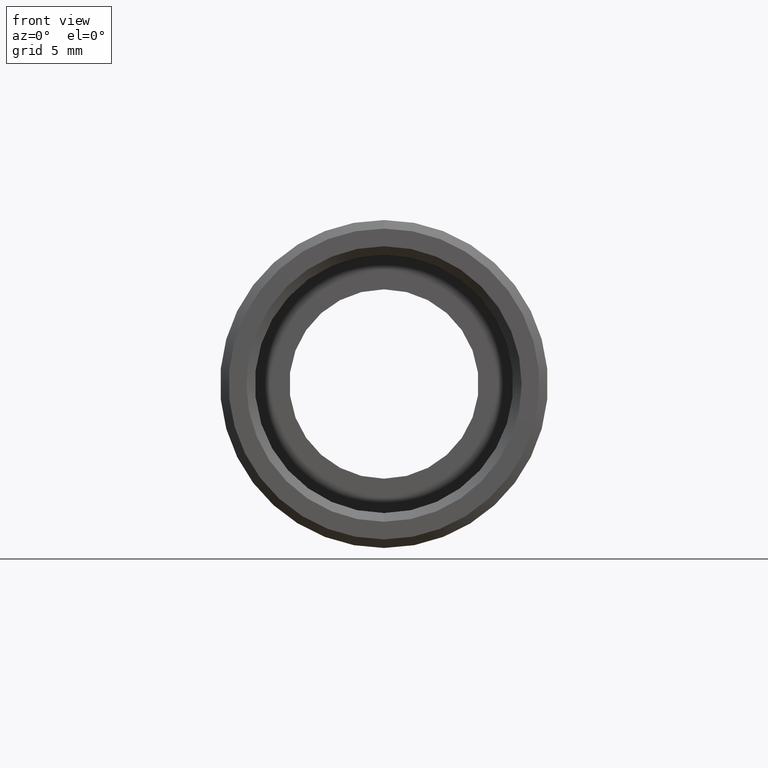
[diagram: clean part render]
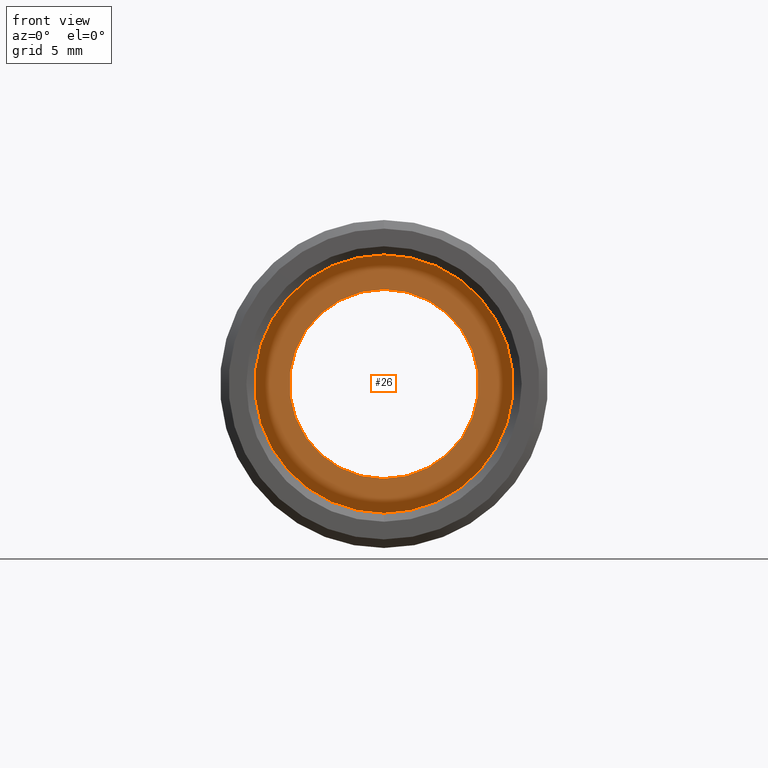
[diagram: same view with one face highlighted and labeled with its STEP entity id]
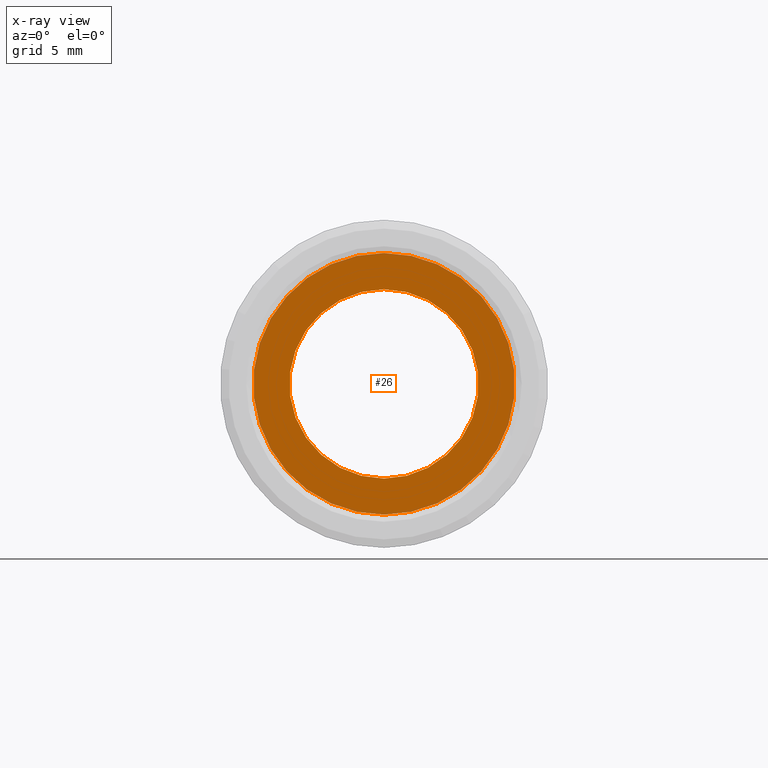
[diagram: x-ray of the same camera — body ghosted, the highlighted face saturated]
A machine part, front view. The second image highlights one B-rep face of the part: STEP entity #26.
The next image is the same camera in x-ray: the body ghosted, the highlighted face saturated — about 2% of this face is hidden behind the body in this view.
In plain terms, the highlighted planar face has unit normal (-0, 1, 0).
Its self-contained STEP definition (entity closure, byte-faithful):
#14 = EDGE_CURVE ( 'NONE', #589, #431, #830, .T. ) ;
#16 = DIRECTION ( 'NONE',  ( -0.0000000000000000000, 1.000000000000000000, 0.0000000000000000000 ) ) ;
#26 = ADVANCED_FACE ( 'NONE', ( #284, #785 ), #414, .F. ) ;
#44 = DIRECTION ( 'NONE',  ( 0.0000000000000000000, 0.0000000000000000000, 1.000000000000000000 ) ) ;
#66 = CARTESIAN_POINT ( 'NONE',  ( 6.735557395310448900E-016, -0.3571458254331069700, -5.500000000000005300 ) ) ;
#86 = AXIS2_PLACEMENT_3D ( 'NONE', #303, #480, #572 ) ;
#206 = EDGE_CURVE ( 'NONE', #872, #474, #634, .T. ) ;
#212 = ORIENTED_EDGE ( 'NONE', *, *, #811, .T. ) ;
#235 = DIRECTION ( 'NONE',  ( -0.0000000000000000000, 1.000000000000000000, -0.0000000000000000000 ) ) ;
#270 = AXIS2_PLACEMENT_3D ( 'NONE', #654, #319, #44 ) ;
#280 = AXIS2_PLACEMENT_3D ( 'NONE', #641, #705, #574 ) ;
#284 = FACE_OUTER_BOUND ( 'NONE', #434, .T. ) ;
#303 = CARTESIAN_POINT ( 'NONE',  ( 0.0000000000000000000, -0.3571458254331069700, 0.0000000000000000000 ) ) ;
#319 = DIRECTION ( 'NONE',  ( -0.0000000000000000000, 1.000000000000000000, -0.0000000000000000000 ) ) ;
#348 = CARTESIAN_POINT ( 'NONE',  ( 7.600000000000005000, -0.3571458254331055200, 0.0000000000000000000 ) ) ;
#368 = AXIS2_PLACEMENT_3D ( 'NONE', #500, #235, #498 ) ;
#414 = PLANE ( 'NONE',  #505 ) ;
#426 = CIRCLE ( 'NONE', #280, 7.600000000000005000 ) ;
#427 = DIRECTION ( 'NONE',  ( 0.0000000000000000000, 0.0000000000000000000, 1.000000000000000000 ) ) ;
#431 = VERTEX_POINT ( 'NONE', #524 ) ;
#434 = EDGE_LOOP ( 'NONE', ( #875, #576 ) ) ;
#474 = VERTEX_POINT ( 'NONE', #547 ) ;
#480 = DIRECTION ( 'NONE',  ( -0.0000000000000000000, 1.000000000000000000, -0.0000000000000000000 ) ) ;
#498 = DIRECTION ( 'NONE',  ( 0.0000000000000000000, 0.0000000000000000000, 1.000000000000000000 ) ) ;
#500 = CARTESIAN_POINT ( 'NONE',  ( 0.0000000000000000000, -0.3571458254331069700, 0.0000000000000000000 ) ) ;
#505 = AXIS2_PLACEMENT_3D ( 'NONE', #348, #16, #427 ) ;
#514 = CARTESIAN_POINT ( 'NONE',  ( 0.0000000000000000000, -0.3571458254331069700, 7.600000000000005000 ) ) ;
#524 = CARTESIAN_POINT ( 'NONE',  ( 0.0000000000000000000, -0.3571458254331069700, 5.500000000000005300 ) ) ;
#535 = EDGE_LOOP ( 'NONE', ( #212, #615 ) ) ;
#547 = CARTESIAN_POINT ( 'NONE',  ( 9.307315673519889400E-016, -0.3571458254331069700, -7.600000000000005000 ) ) ;
#572 = DIRECTION ( 'NONE',  ( 0.0000000000000000000, 0.0000000000000000000, 1.000000000000000000 ) ) ;
#574 = DIRECTION ( 'NONE',  ( 0.0000000000000000000, 0.0000000000000000000, 1.000000000000000000 ) ) ;
#576 = ORIENTED_EDGE ( 'NONE', *, *, #760, .F. ) ;
#589 = VERTEX_POINT ( 'NONE', #66 ) ;
#615 = ORIENTED_EDGE ( 'NONE', *, *, #14, .T. ) ;
#634 = CIRCLE ( 'NONE', #270, 7.600000000000005000 ) ;
#641 = CARTESIAN_POINT ( 'NONE',  ( 0.0000000000000000000, -0.3571458254331069700, 0.0000000000000000000 ) ) ;
#654 = CARTESIAN_POINT ( 'NONE',  ( 0.0000000000000000000, -0.3571458254331069700, 0.0000000000000000000 ) ) ;
#705 = DIRECTION ( 'NONE',  ( -0.0000000000000000000, 1.000000000000000000, -0.0000000000000000000 ) ) ;
#760 = EDGE_CURVE ( 'NONE', #474, #872, #426, .T. ) ;
#785 = FACE_BOUND ( 'NONE', #535, .T. ) ;
#811 = EDGE_CURVE ( 'NONE', #431, #589, #870, .T. ) ;
#830 = CIRCLE ( 'NONE', #86, 5.500000000000005300 ) ;
#870 = CIRCLE ( 'NONE', #368, 5.500000000000005300 ) ;
#872 = VERTEX_POINT ( 'NONE', #514 ) ;
#875 = ORIENTED_EDGE ( 'NONE', *, *, #206, .F. ) ;